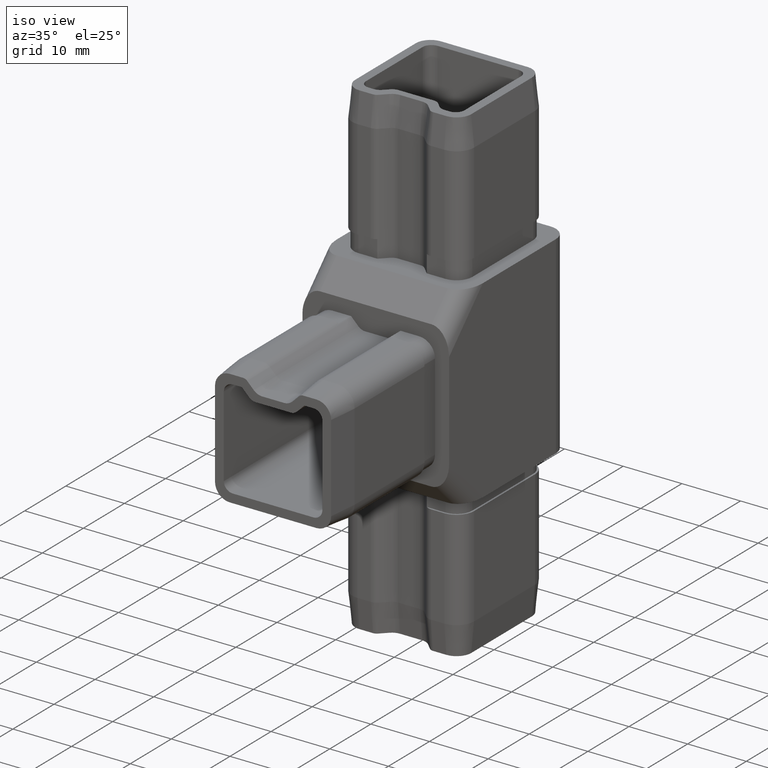
[diagram: clean part render]
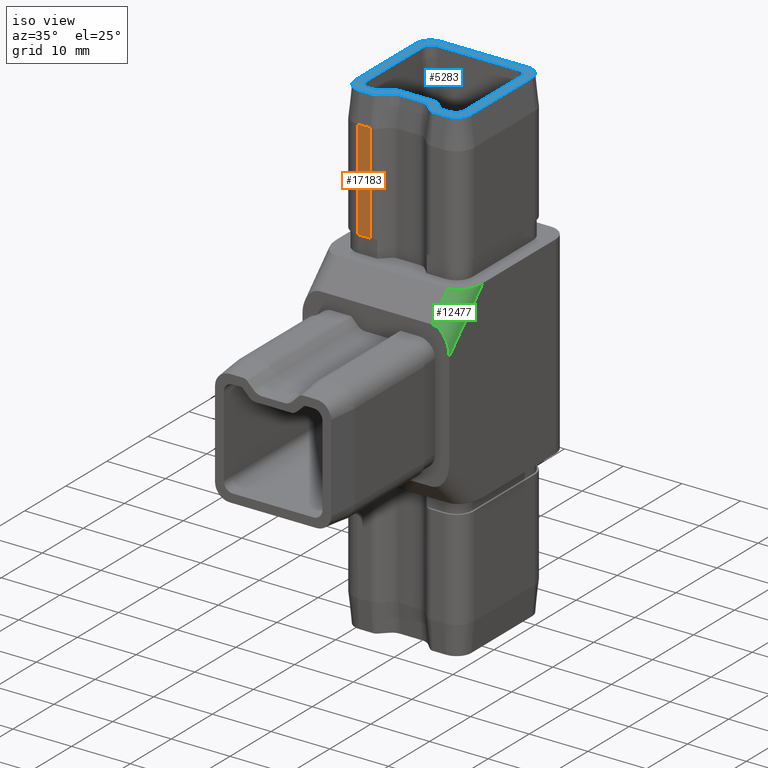
[diagram: same view with three faces highlighted in distinct colors, each labeled with its STEP entity id]
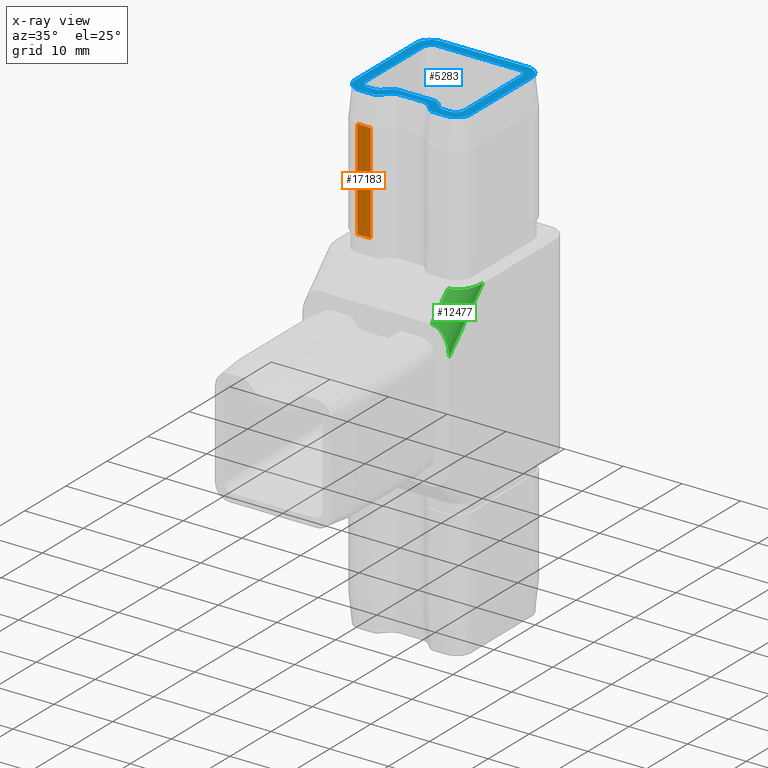
[diagram: x-ray of the same camera — body ghosted, the three highlighted faces saturated]
A machine part, iso view with three faces highlighted in distinct colors.
The next image is the same camera in x-ray (body ghosted, the three faces saturated) — at least one of them is partly hidden behind the body in this view.
Their STEP definitions:

[orange] entity #17183 — the highlighted planar face has unit normal (0, -1, 0).
#224 = VERTEX_POINT ( 'NONE', #16847 ) ;
#369 = CARTESIAN_POINT ( 'NONE',  ( -5.121320343559642800, -8.399999999999993200, 19.50000000000000000 ) ) ;
#1852 = VECTOR ( 'NONE', #2234, 1000.000000000000000 ) ;
#2084 = VERTEX_POINT ( 'NONE', #18792 ) ;
#2147 = ORIENTED_EDGE ( 'NONE', *, *, #10604, .T. ) ;
#2234 = DIRECTION ( 'NONE',  ( -1.000000000000000000, -1.172110456741085300E-016, 0.0000000000000000000 ) ) ;
#2946 = AXIS2_PLACEMENT_3D ( 'NONE', #15961, #19028, #6685 ) ;
#3716 = LINE ( 'NONE', #10082, #17240 ) ;
#5123 = LINE ( 'NONE', #15343, #1852 ) ;
#5351 = ORIENTED_EDGE ( 'NONE', *, *, #16415, .T. ) ;
#5925 = VERTEX_POINT ( 'NONE', #369 ) ;
#5930 = VECTOR ( 'NONE', #16714, 1000.000000000000000 ) ;
#6066 = EDGE_CURVE ( 'NONE', #2084, #7155, #18521, .T. ) ;
#6158 = CARTESIAN_POINT ( 'NONE',  ( -5.121320343559642800, -8.399999999999991500, 41.50000000000000000 ) ) ;
#6685 = DIRECTION ( 'NONE',  ( 0.0000000000000000000, -0.0000000000000000000, -1.000000000000000000 ) ) ;
#7084 = DIRECTION ( 'NONE',  ( -1.000000000000000000, 0.0000000000000000000, 0.0000000000000000000 ) ) ;
#7155 = VERTEX_POINT ( 'NONE', #9947 ) ;
#9046 = ORIENTED_EDGE ( 'NONE', *, *, #6066, .T. ) ;
#9801 = CARTESIAN_POINT ( 'NONE',  ( -7.400000000000003000, -8.399999999999991500, 41.50000000000000000 ) ) ;
#9947 = CARTESIAN_POINT ( 'NONE',  ( -7.400000000000005700, -8.399999999999993200, 19.50000000000000000 ) ) ;
#9953 = VECTOR ( 'NONE', #10437, 1000.000000000000000 ) ;
#10082 = CARTESIAN_POINT ( 'NONE',  ( -5.121320343559641900, -8.399999999999987900, 36.50000000000000700 ) ) ;
#10437 = DIRECTION ( 'NONE',  ( 0.0000000000000000000, 0.0000000000000000000, -1.000000000000000000 ) ) ;
#10604 = EDGE_CURVE ( 'NONE', #224, #2084, #3716, .T. ) ;
#11289 = EDGE_CURVE ( 'NONE', #5925, #7155, #5123, .T. ) ;
#12310 = ORIENTED_EDGE ( 'NONE', *, *, #11289, .F. ) ;
#14063 = FACE_OUTER_BOUND ( 'NONE', #16427, .T. ) ;
#15343 = CARTESIAN_POINT ( 'NONE',  ( 7.400000000000002100, -8.399999999999991500, 19.50000000000000000 ) ) ;
#15765 = PLANE ( 'NONE',  #2946 ) ;
#15961 = CARTESIAN_POINT ( 'NONE',  ( 0.0000000000000000000, -8.399999999999991500, 41.50000000000000000 ) ) ;
#16415 = EDGE_CURVE ( 'NONE', #5925, #224, #16805, .T. ) ;
#16427 = EDGE_LOOP ( 'NONE', ( #2147, #9046, #12310, #5351 ) ) ;
#16714 = DIRECTION ( 'NONE',  ( -0.0000000000000000000, -0.0000000000000000000, 1.000000000000000000 ) ) ;
#16805 = LINE ( 'NONE', #6158, #5930 ) ;
#16847 = CARTESIAN_POINT ( 'NONE',  ( -5.121320343559642800, -8.399999999999991500, 36.49999999999998600 ) ) ;
#17183 = ADVANCED_FACE ( 'NONE', ( #14063 ), #15765, .T. ) ;
#17240 = VECTOR ( 'NONE', #7084, 1000.000000000000000 ) ;
#18521 = LINE ( 'NONE', #9801, #9953 ) ;
#18792 = CARTESIAN_POINT ( 'NONE',  ( -7.400000000000003000, -8.399999999999987900, 36.50000000000000700 ) ) ;
#19028 = DIRECTION ( 'NONE',  ( 0.0000000000000000000, -1.000000000000000000, 0.0000000000000000000 ) ) ;

[blue] entity #5283 — the highlighted planar face has unit normal (-0, 0, 1).
#140 = CIRCLE ( 'NONE', #13457, 2.500000000000003100 ) ;
#177 = DIRECTION ( 'NONE',  ( -1.000000000000000000, 0.0000000000000000000, 0.0000000000000000000 ) ) ;
#214 = CARTESIAN_POINT ( 'NONE',  ( -8.400000000000002100, -4.899999999999991500, 41.50000000000000000 ) ) ;
#223 = LINE ( 'NONE', #12605, #15363 ) ;
#302 = AXIS2_PLACEMENT_3D ( 'NONE', #17414, #13021, #18824 ) ;
#396 = CARTESIAN_POINT ( 'NONE',  ( 3.008831175456875500, -4.701724394270312900, 41.50000000000000000 ) ) ;
#397 = CARTESIAN_POINT ( 'NONE',  ( 0.0000000000000000000, -4.701724394270312900, 41.50000000000000000 ) ) ;
#408 = EDGE_CURVE ( 'NONE', #5649, #16141, #3472, .T. ) ;
#409 = ORIENTED_EDGE ( 'NONE', *, *, #4916, .F. ) ;
#454 = VERTEX_POINT ( 'NONE', #1254 ) ;
#605 = DIRECTION ( 'NONE',  ( 1.000000000000000000, 0.0000000000000000000, 0.0000000000000000000 ) ) ;
#641 = AXIS2_PLACEMENT_3D ( 'NONE', #3541, #12711, #11203 ) ;
#651 = DIRECTION ( 'NONE',  ( -0.0000000000000000000, -0.0000000000000000000, -1.000000000000000000 ) ) ;
#706 = AXIS2_PLACEMENT_3D ( 'NONE', #10638, #16922, #177 ) ;
#711 = EDGE_CURVE ( 'NONE', #14790, #18388, #2994, .T. ) ;
#713 = DIRECTION ( 'NONE',  ( -0.0000000000000000000, 0.0000000000000000000, 1.000000000000000000 ) ) ;
#779 = CARTESIAN_POINT ( 'NONE',  ( -8.400000000000002100, 0.0000000000000000000, 41.50000000000000000 ) ) ;
#850 = VECTOR ( 'NONE', #11585, 1000.000000000000000 ) ;
#873 = CARTESIAN_POINT ( 'NONE',  ( -1.878679656440359800, -5.899999999999993200, 41.50000000000000700 ) ) ;
#956 = CARTESIAN_POINT ( 'NONE',  ( -6.900000000000002100, -6.399999999999989700, 41.50000000000000000 ) ) ;
#960 = DIRECTION ( 'NONE',  ( 1.000000000000000000, 0.0000000000000000000, 0.0000000000000000000 ) ) ;
#969 = DIRECTION ( 'NONE',  ( 0.0000000000000000000, 0.0000000000000000000, 1.000000000000000000 ) ) ;
#1018 = CARTESIAN_POINT ( 'NONE',  ( 7.399999999999999500, 9.400000000000005700, 41.50000000000000700 ) ) ;
#1124 = DIRECTION ( 'NONE',  ( -1.000000000000000000, 0.0000000000000000000, 0.0000000000000000000 ) ) ;
#1131 = AXIS2_PLACEMENT_3D ( 'NONE', #13425, #11704, #2845 ) ;
#1230 = DIRECTION ( 'NONE',  ( 2.344220913482172600E-016, -1.000000000000000000, 0.0000000000000000000 ) ) ;
#1254 = CARTESIAN_POINT ( 'NONE',  ( 8.400000000000000400, 8.900000000000007500, 41.50000000000000000 ) ) ;
#1391 = CARTESIAN_POINT ( 'NONE',  ( -6.900000000000003900, 8.900000000000007500, 41.50000000000000000 ) ) ;
#1418 = ORIENTED_EDGE ( 'NONE', *, *, #13349, .T. ) ;
#1450 = CARTESIAN_POINT ( 'NONE',  ( 4.414213562373092300, -7.607106781186539400, 41.50000000000000700 ) ) ;
#1461 = CIRCLE ( 'NONE', #4469, 1.000000000000006000 ) ;
#1681 = ORIENTED_EDGE ( 'NONE', *, *, #7458, .F. ) ;
#1689 = CARTESIAN_POINT ( 'NONE',  ( 8.400000000000000400, -4.899999999999989700, 41.50000000000000000 ) ) ;
#1690 = DIRECTION ( 'NONE',  ( 0.0000000000000000000, 1.000000000000000000, 0.0000000000000000000 ) ) ;
#1856 = DIRECTION ( 'NONE',  ( -1.000000000000000000, 0.0000000000000000000, 0.0000000000000000000 ) ) ;
#1924 = VERTEX_POINT ( 'NONE', #17849 ) ;
#2137 = VERTEX_POINT ( 'NONE', #3798 ) ;
#2146 = CARTESIAN_POINT ( 'NONE',  ( 3.008831175456875500, -6.201724394270312900, 41.50000000000000000 ) ) ;
#2185 = DIRECTION ( 'NONE',  ( -1.000000000000000000, 0.0000000000000000000, 0.0000000000000000000 ) ) ;
#2246 = EDGE_CURVE ( 'NONE', #8341, #16141, #15760, .T. ) ;
#2279 = CARTESIAN_POINT ( 'NONE',  ( -4.414213562373093100, -7.607106781186543800, 41.50000000000000700 ) ) ;
#2306 = AXIS2_PLACEMENT_3D ( 'NONE', #19317, #969, #16132 ) ;
#2354 = ORIENTED_EDGE ( 'NONE', *, *, #408, .F. ) ;
#2414 = CIRCLE ( 'NONE', #12285, 1.500000000000000400 ) ;
#2455 = CARTESIAN_POINT ( 'NONE',  ( -5.949747468305834500, -4.899999999999989700, 41.50000000000000000 ) ) ;
#2493 = ORIENTED_EDGE ( 'NONE', *, *, #4165, .T. ) ;
#2518 = DIRECTION ( 'NONE',  ( -1.000000000000000000, -7.612844881788730800E-016, 0.0000000000000000000 ) ) ;
#2565 = FACE_BOUND ( 'NONE', #9048, .T. ) ;
#2616 = VECTOR ( 'NONE', #8104, 1000.000000000000000 ) ;
#2724 = VERTEX_POINT ( 'NONE', #396 ) ;
#2818 = CARTESIAN_POINT ( 'NONE',  ( -7.400000000000006600, -7.899999999999995900, 41.50000000000000700 ) ) ;
#2830 = EDGE_CURVE ( 'NONE', #18140, #6533, #7868, .T. ) ;
#2845 = DIRECTION ( 'NONE',  ( 1.000000000000000000, 0.0000000000000000000, 0.0000000000000000000 ) ) ;
#2855 = CARTESIAN_POINT ( 'NONE',  ( -7.400000000000003000, 9.400000000000005700, 41.50000000000000700 ) ) ;
#2860 = EDGE_CURVE ( 'NONE', #4066, #12033, #17517, .T. ) ;
#2938 = ORIENTED_EDGE ( 'NONE', *, *, #18497, .F. ) ;
#2994 = LINE ( 'NONE', #779, #5585 ) ;
#3443 = DIRECTION ( 'NONE',  ( -1.000000000000000000, 0.0000000000000000000, -0.0000000000000000000 ) ) ;
#3472 = LINE ( 'NONE', #8478, #850 ) ;
#3541 = CARTESIAN_POINT ( 'NONE',  ( -6.900000000000002100, -4.899999999999991500, 41.50000000000000000 ) ) ;
#3660 = DIRECTION ( 'NONE',  ( 1.000000000000000000, 0.0000000000000000000, 0.0000000000000000000 ) ) ;
#3713 = CIRCLE ( 'NONE', #641, 1.500000000000000400 ) ;
#3786 = CARTESIAN_POINT ( 'NONE',  ( 0.0000000000000000000, 0.0000000000000000000, 41.50000000000000000 ) ) ;
#3798 = CARTESIAN_POINT ( 'NONE',  ( 4.069491347236698300, -5.141064222490492800, 41.50000000000000000 ) ) ;
#3943 = CARTESIAN_POINT ( 'NONE',  ( 7.400000000000003000, -7.899999999999994100, 41.50000000000000700 ) ) ;
#4023 = AXIS2_PLACEMENT_3D ( 'NONE', #13079, #11575, #10110 ) ;
#4066 = VERTEX_POINT ( 'NONE', #1689 ) ;
#4104 = ORIENTED_EDGE ( 'NONE', *, *, #8676, .T. ) ;
#4165 = EDGE_CURVE ( 'NONE', #13901, #5261, #12202, .T. ) ;
#4261 = DIRECTION ( 'NONE',  ( -0.7071067811865463500, -0.7071067811865487900, 0.0000000000000000000 ) ) ;
#4310 = CIRCLE ( 'NONE', #302, 1.000000000000006000 ) ;
#4415 = ORIENTED_EDGE ( 'NONE', *, *, #7711, .F. ) ;
#4431 = DIRECTION ( 'NONE',  ( -1.000000000000000000, 0.0000000000000000000, 0.0000000000000000000 ) ) ;
#4469 = AXIS2_PLACEMENT_3D ( 'NONE', #13956, #4878, #1856 ) ;
#4505 = EDGE_CURVE ( 'NONE', #15364, #18287, #14515, .T. ) ;
#4564 = VERTEX_POINT ( 'NONE', #3943 ) ;
#4754 = CARTESIAN_POINT ( 'NONE',  ( 5.949747468305835300, -6.399999999999988800, 41.50000000000000000 ) ) ;
#4878 = DIRECTION ( 'NONE',  ( -0.0000000000000000000, -0.0000000000000000000, -1.000000000000000000 ) ) ;
#4916 = EDGE_CURVE ( 'NONE', #8341, #12703, #7612, .T. ) ;
#4936 = CARTESIAN_POINT ( 'NONE',  ( -3.292893218813454800, -6.485786437626901000, 41.50000000000000700 ) ) ;
#5047 = CARTESIAN_POINT ( 'NONE',  ( 1.878679656440363400, -7.899999999999988800, 41.50000000000000700 ) ) ;
#5114 = EDGE_CURVE ( 'NONE', #12033, #15364, #223, .T. ) ;
#5157 = LINE ( 'NONE', #7203, #8725 ) ;
#5261 = VERTEX_POINT ( 'NONE', #14622 ) ;
#5283 = ADVANCED_FACE ( 'NONE', ( #18700, #2565 ), #16094, .T. ) ;
#5340 = DIRECTION ( 'NONE',  ( 0.0000000000000000000, 1.000000000000000000, -0.0000000000000000000 ) ) ;
#5403 = CARTESIAN_POINT ( 'NONE',  ( 1.807254897921661800E-015, -6.399999999999987900, 41.50000000000000000 ) ) ;
#5469 = LINE ( 'NONE', #12243, #11623 ) ;
#5480 = CARTESIAN_POINT ( 'NONE',  ( 6.900000000000000400, -6.399999999999988800, 41.50000000000000000 ) ) ;
#5585 = VECTOR ( 'NONE', #5340, 1000.000000000000000 ) ;
#5649 = VERTEX_POINT ( 'NONE', #17845 ) ;
#5661 = ORIENTED_EDGE ( 'NONE', *, *, #5919, .T. ) ;
#5674 = DIRECTION ( 'NONE',  ( 0.0000000000000000000, -0.0000000000000000000, -1.000000000000000000 ) ) ;
#5761 = LINE ( 'NONE', #7259, #9337 ) ;
#5919 = EDGE_CURVE ( 'NONE', #8731, #14790, #3713, .T. ) ;
#5975 = DIRECTION ( 'NONE',  ( 1.032573497605242800E-016, -1.000000000000000000, 0.0000000000000000000 ) ) ;
#6031 = DIRECTION ( 'NONE',  ( -0.7071067811865459100, 0.7071067811865491300, 0.0000000000000000000 ) ) ;
#6068 = VECTOR ( 'NONE', #14346, 1000.000000000000000 ) ;
#6128 = EDGE_CURVE ( 'NONE', #15601, #9974, #12325, .T. ) ;
#6227 = CIRCLE ( 'NONE', #1131, 1.500000000000000400 ) ;
#6296 = VERTEX_POINT ( 'NONE', #18278 ) ;
#6416 = VECTOR ( 'NONE', #6031, 1000.000000000000100 ) ;
#6533 = VERTEX_POINT ( 'NONE', #13458 ) ;
#6560 = CARTESIAN_POINT ( 'NONE',  ( -5.121320343559645500, -7.899999999999995900, 41.50000000000000700 ) ) ;
#6565 = CARTESIAN_POINT ( 'NONE',  ( -6.900000000000003900, 10.40000000000000400, 41.50000000000000000 ) ) ;
#6623 = EDGE_CURVE ( 'NONE', #14832, #5649, #140, .T. ) ;
#6719 = CARTESIAN_POINT ( 'NONE',  ( 7.400000000000002100, -5.399999999999987900, 41.50000000000000700 ) ) ;
#6786 = CARTESIAN_POINT ( 'NONE',  ( 0.5357864376268916000, -0.5357864376268899300, 41.50000000000000000 ) ) ;
#6799 = DIRECTION ( 'NONE',  ( -1.000000000000000000, -2.823835778002602900E-016, 0.0000000000000000000 ) ) ;
#7079 = VECTOR ( 'NONE', #1230, 1000.000000000000000 ) ;
#7153 = CARTESIAN_POINT ( 'NONE',  ( 4.889087296526012600, -5.960660171779808900, 41.50000000000000000 ) ) ;
#7203 = CARTESIAN_POINT ( 'NONE',  ( 1.878679656440362500, -5.899999999999993200, 41.50000000000000700 ) ) ;
#7259 = CARTESIAN_POINT ( 'NONE',  ( 7.400000000000003000, -7.899999999999994100, 41.50000000000000700 ) ) ;
#7286 = CARTESIAN_POINT ( 'NONE',  ( 4.414213562373092300, -7.607106781186539400, 41.50000000000000700 ) ) ;
#7368 = DIRECTION ( 'NONE',  ( -0.0000000000000000000, -0.0000000000000000000, -1.000000000000000000 ) ) ;
#7458 = EDGE_CURVE ( 'NONE', #16643, #14345, #8342, .T. ) ;
#7612 = CIRCLE ( 'NONE', #9295, 2.500000000000005800 ) ;
#7674 = ORIENTED_EDGE ( 'NONE', *, *, #12699, .F. ) ;
#7711 = EDGE_CURVE ( 'NONE', #18227, #19385, #1461, .T. ) ;
#7794 = ORIENTED_EDGE ( 'NONE', *, *, #12624, .T. ) ;
#7868 = CIRCLE ( 'NONE', #8246, 1.500000000000000000 ) ;
#8041 = CIRCLE ( 'NONE', #706, 2.500000000000004900 ) ;
#8104 = DIRECTION ( 'NONE',  ( -1.000000000000000000, 0.0000000000000000000, 0.0000000000000000000 ) ) ;
#8246 = AXIS2_PLACEMENT_3D ( 'NONE', #9782, #713, #11295 ) ;
#8341 = VERTEX_POINT ( 'NONE', #8737 ) ;
#8342 = CIRCLE ( 'NONE', #2306, 1.999999999999995800 ) ;
#8373 = DIRECTION ( 'NONE',  ( -0.0000000000000000000, 0.0000000000000000000, 1.000000000000000000 ) ) ;
#8436 = VECTOR ( 'NONE', #3443, 1000.000000000000000 ) ;
#8440 = ORIENTED_EDGE ( 'NONE', *, *, #10732, .F. ) ;
#8478 = CARTESIAN_POINT ( 'NONE',  ( -7.400000000000000400, 11.90000000000000700, 41.50000000000000700 ) ) ;
#8550 = ORIENTED_EDGE ( 'NONE', *, *, #5114, .T. ) ;
#8614 = DIRECTION ( 'NONE',  ( -0.7071067811865464600, -0.7071067811865486800, 0.0000000000000000000 ) ) ;
#8643 = VERTEX_POINT ( 'NONE', #9471 ) ;
#8676 = EDGE_CURVE ( 'NONE', #18287, #2137, #9504, .T. ) ;
#8681 = EDGE_CURVE ( 'NONE', #6296, #8731, #16580, .T. ) ;
#8725 = VECTOR ( 'NONE', #1124, 1000.000000000000000 ) ;
#8731 = VERTEX_POINT ( 'NONE', #956 ) ;
#8737 = CARTESIAN_POINT ( 'NONE',  ( 7.399999999999997700, 11.90000000000001100, 41.50000000000000700 ) ) ;
#8830 = VERTEX_POINT ( 'NONE', #2818 ) ;
#9048 = EDGE_LOOP ( 'NONE', ( #8550, #18636, #4104, #7794, #13988, #10006, #18691, #1418, #15598, #5661, #14534, #16910, #2493, #10870, #13386, #12289 ) ) ;
#9243 = VERTEX_POINT ( 'NONE', #13611 ) ;
#9295 = AXIS2_PLACEMENT_3D ( 'NONE', #1018, #7368, #19447 ) ;
#9337 = VECTOR ( 'NONE', #2518, 1000.000000000000000 ) ;
#9407 = CIRCLE ( 'NONE', #16301, 1.500000000000000400 ) ;
#9471 = CARTESIAN_POINT ( 'NONE',  ( 9.900000000000007500, -5.399999999999987900, 41.50000000000000700 ) ) ;
#9482 = ORIENTED_EDGE ( 'NONE', *, *, #10574, .F. ) ;
#9504 = LINE ( 'NONE', #10985, #15627 ) ;
#9651 = DIRECTION ( 'NONE',  ( -0.7071067811865465700, 0.7071067811865484600, 0.0000000000000000000 ) ) ;
#9666 = ORIENTED_EDGE ( 'NONE', *, *, #14604, .F. ) ;
#9679 = CARTESIAN_POINT ( 'NONE',  ( 0.0000000000000000000, 10.40000000000000400, 41.50000000000000000 ) ) ;
#9782 = CARTESIAN_POINT ( 'NONE',  ( -3.008831175456876000, -6.201724394270312900, 41.50000000000000000 ) ) ;
#9808 = EDGE_CURVE ( 'NONE', #6533, #16369, #13958, .T. ) ;
#9854 = LINE ( 'NONE', #397, #8436 ) ;
#9974 = VERTEX_POINT ( 'NONE', #17055 ) ;
#9976 = CARTESIAN_POINT ( 'NONE',  ( 6.900000000000000400, -4.899999999999989700, 41.50000000000000000 ) ) ;
#10006 = ORIENTED_EDGE ( 'NONE', *, *, #2830, .T. ) ;
#10110 = DIRECTION ( 'NONE',  ( 1.000000000000000000, -1.156482317317871700E-015, 0.0000000000000000000 ) ) ;
#10191 = EDGE_CURVE ( 'NONE', #1924, #16643, #5157, .T. ) ;
#10292 = CARTESIAN_POINT ( 'NONE',  ( 9.900000000000003900, 9.400000000000005700, 41.50000000000000700 ) ) ;
#10393 = AXIS2_PLACEMENT_3D ( 'NONE', #6719, #651, #2185 ) ;
#10452 = DIRECTION ( 'NONE',  ( 1.000000000000000000, 0.0000000000000000000, 0.0000000000000000000 ) ) ;
#10574 = EDGE_CURVE ( 'NONE', #8643, #4564, #15572, .T. ) ;
#10638 = CARTESIAN_POINT ( 'NONE',  ( -7.400000000000003000, -5.399999999999990600, 41.50000000000000700 ) ) ;
#10732 = EDGE_CURVE ( 'NONE', #14345, #18227, #17018, .T. ) ;
#10735 = EDGE_CURVE ( 'NONE', #12703, #8643, #13188, .T. ) ;
#10848 = EDGE_CURVE ( 'NONE', #8830, #9243, #8041, .T. ) ;
#10870 = ORIENTED_EDGE ( 'NONE', *, *, #18876, .T. ) ;
#10985 = CARTESIAN_POINT ( 'NONE',  ( -0.5357864376268920400, -0.5357864376268906000, 41.50000000000000000 ) ) ;
#11041 = AXIS2_PLACEMENT_3D ( 'NONE', #3786, #19078, #11523 ) ;
#11203 = DIRECTION ( 'NONE',  ( 1.000000000000000000, 0.0000000000000000000, 0.0000000000000000000 ) ) ;
#11295 = DIRECTION ( 'NONE',  ( 1.000000000000000000, 0.0000000000000000000, 0.0000000000000000000 ) ) ;
#11301 = CARTESIAN_POINT ( 'NONE',  ( 0.0000000000000000000, 11.90000000000001100, 41.50000000000000000 ) ) ;
#11307 = CARTESIAN_POINT ( 'NONE',  ( -9.900000000000005700, 9.400000000000009200, 41.50000000000000700 ) ) ;
#11419 = ORIENTED_EDGE ( 'NONE', *, *, #19254, .F. ) ;
#11523 = DIRECTION ( 'NONE',  ( 1.000000000000000000, 0.0000000000000000000, 0.0000000000000000000 ) ) ;
#11575 = DIRECTION ( 'NONE',  ( 0.0000000000000000000, -0.0000000000000000000, -1.000000000000000000 ) ) ;
#11584 = EDGE_CURVE ( 'NONE', #18388, #13901, #9407, .T. ) ;
#11585 = DIRECTION ( 'NONE',  ( 1.000000000000000000, 0.0000000000000000000, 0.0000000000000000000 ) ) ;
#11623 = VECTOR ( 'NONE', #5975, 1000.000000000000000 ) ;
#11704 = DIRECTION ( 'NONE',  ( 0.0000000000000000000, -0.0000000000000000000, -1.000000000000000000 ) ) ;
#11851 = EDGE_CURVE ( 'NONE', #2724, #18140, #9854, .T. ) ;
#11894 = CARTESIAN_POINT ( 'NONE',  ( -3.292893218813454800, -6.485786437626901000, 41.50000000000000700 ) ) ;
#12033 = VERTEX_POINT ( 'NONE', #5480 ) ;
#12058 = DIRECTION ( 'NONE',  ( -0.0000000000000000000, -0.0000000000000000000, -1.000000000000000000 ) ) ;
#12142 = CARTESIAN_POINT ( 'NONE',  ( -8.400000000000002100, 8.900000000000007500, 41.50000000000000000 ) ) ;
#12202 = LINE ( 'NONE', #9679, #6068 ) ;
#12243 = CARTESIAN_POINT ( 'NONE',  ( 8.400000000000000400, 8.673617379884041400E-016, 41.50000000000000000 ) ) ;
#12285 = AXIS2_PLACEMENT_3D ( 'NONE', #2455, #14547, #16086 ) ;
#12289 = ORIENTED_EDGE ( 'NONE', *, *, #2860, .T. ) ;
#12291 = AXIS2_PLACEMENT_3D ( 'NONE', #9976, #5674, #960 ) ;
#12309 = VECTOR ( 'NONE', #8614, 999.9999999999998900 ) ;
#12325 = LINE ( 'NONE', #1450, #6416 ) ;
#12467 = CARTESIAN_POINT ( 'NONE',  ( -9.900000000000005700, -5.399999999999987900, 41.50000000000000700 ) ) ;
#12573 = LINE ( 'NONE', #6560, #2616 ) ;
#12605 = CARTESIAN_POINT ( 'NONE',  ( 1.807254897921663000E-015, -6.399999999999990600, 41.50000000000000000 ) ) ;
#12624 = EDGE_CURVE ( 'NONE', #2137, #2724, #13819, .T. ) ;
#12699 = EDGE_CURVE ( 'NONE', #4564, #13828, #5761, .T. ) ;
#12703 = VERTEX_POINT ( 'NONE', #19213 ) ;
#12711 = DIRECTION ( 'NONE',  ( 0.0000000000000000000, -0.0000000000000000000, -1.000000000000000000 ) ) ;
#12738 = EDGE_LOOP ( 'NONE', ( #2354, #19326, #2938, #15388, #11419, #4415, #8440, #1681, #14761, #9666, #16490, #17722, #7674, #9482, #18868, #409, #15049 ) ) ;
#12762 = AXIS2_PLACEMENT_3D ( 'NONE', #2146, #8373, #605 ) ;
#12957 = VECTOR ( 'NONE', #4261, 1000.000000000000000 ) ;
#13021 = DIRECTION ( 'NONE',  ( -0.0000000000000000000, -0.0000000000000000000, -1.000000000000000000 ) ) ;
#13079 = CARTESIAN_POINT ( 'NONE',  ( 5.949747468305835300, -4.899999999999989700, 41.50000000000000000 ) ) ;
#13181 = DIRECTION ( 'NONE',  ( -1.000000000000000000, -0.0000000000000000000, -0.0000000000000000000 ) ) ;
#13188 = LINE ( 'NONE', #10292, #7079 ) ;
#13333 = CARTESIAN_POINT ( 'NONE',  ( -3.008831175456876000, -4.701724394270312900, 41.50000000000000000 ) ) ;
#13349 = EDGE_CURVE ( 'NONE', #16369, #6296, #2414, .T. ) ;
#13386 = ORIENTED_EDGE ( 'NONE', *, *, #19044, .T. ) ;
#13425 = CARTESIAN_POINT ( 'NONE',  ( 6.899999999999998600, 8.900000000000007500, 41.50000000000000000 ) ) ;
#13457 = AXIS2_PLACEMENT_3D ( 'NONE', #2855, #12058, #4431 ) ;
#13458 = CARTESIAN_POINT ( 'NONE',  ( -4.069491347236698300, -5.141064222490493700, 41.50000000000000000 ) ) ;
#13611 = CARTESIAN_POINT ( 'NONE',  ( -9.900000000000005700, -5.399999999999987900, 41.50000000000000700 ) ) ;
#13676 = CARTESIAN_POINT ( 'NONE',  ( -4.889087296526012600, -5.960660171779808900, 41.50000000000000000 ) ) ;
#13819 = CIRCLE ( 'NONE', #12762, 1.500000000000000400 ) ;
#13828 = VERTEX_POINT ( 'NONE', #16821 ) ;
#13901 = VERTEX_POINT ( 'NONE', #6565 ) ;
#13956 = CARTESIAN_POINT ( 'NONE',  ( -5.121320343559642800, -6.899999999999990600, 41.50000000000000700 ) ) ;
#13958 = LINE ( 'NONE', #6786, #12309 ) ;
#13988 = ORIENTED_EDGE ( 'NONE', *, *, #11851, .T. ) ;
#14240 = VECTOR ( 'NONE', #1690, 1000.000000000000000 ) ;
#14345 = VERTEX_POINT ( 'NONE', #4936 ) ;
#14346 = DIRECTION ( 'NONE',  ( 1.000000000000000000, 0.0000000000000000000, 0.0000000000000000000 ) ) ;
#14515 = CIRCLE ( 'NONE', #4023, 1.499999999999999600 ) ;
#14534 = ORIENTED_EDGE ( 'NONE', *, *, #711, .T. ) ;
#14547 = DIRECTION ( 'NONE',  ( 0.0000000000000000000, -0.0000000000000000000, -1.000000000000000000 ) ) ;
#14604 = EDGE_CURVE ( 'NONE', #9974, #1924, #17542, .T. ) ;
#14622 = CARTESIAN_POINT ( 'NONE',  ( 6.899999999999998600, 10.40000000000000400, 41.50000000000000000 ) ) ;
#14761 = ORIENTED_EDGE ( 'NONE', *, *, #10191, .F. ) ;
#14790 = VERTEX_POINT ( 'NONE', #214 ) ;
#14832 = VERTEX_POINT ( 'NONE', #11307 ) ;
#15049 = ORIENTED_EDGE ( 'NONE', *, *, #2246, .T. ) ;
#15238 = CARTESIAN_POINT ( 'NONE',  ( -5.121320343559645500, -7.899999999999995900, 41.50000000000000700 ) ) ;
#15363 = VECTOR ( 'NONE', #6799, 1000.000000000000000 ) ;
#15364 = VERTEX_POINT ( 'NONE', #4754 ) ;
#15388 = ORIENTED_EDGE ( 'NONE', *, *, #10848, .F. ) ;
#15572 = CIRCLE ( 'NONE', #10393, 2.500000000000005800 ) ;
#15598 = ORIENTED_EDGE ( 'NONE', *, *, #8681, .T. ) ;
#15601 = VERTEX_POINT ( 'NONE', #7286 ) ;
#15627 = VECTOR ( 'NONE', #9651, 1000.000000000000000 ) ;
#15631 = DIRECTION ( 'NONE',  ( 0.0000000000000000000, 0.0000000000000000000, 1.000000000000000000 ) ) ;
#15760 = LINE ( 'NONE', #17972, #17206 ) ;
#16052 = DIRECTION ( 'NONE',  ( -1.000000000000000000, -2.823835778002601000E-016, 0.0000000000000000000 ) ) ;
#16086 = DIRECTION ( 'NONE',  ( 1.000000000000000000, 1.156482317317871100E-015, 0.0000000000000000000 ) ) ;
#16094 = PLANE ( 'NONE',  #11041 ) ;
#16132 = DIRECTION ( 'NONE',  ( 1.000000000000000000, 0.0000000000000000000, 0.0000000000000000000 ) ) ;
#16141 = VERTEX_POINT ( 'NONE', #11301 ) ;
#16301 = AXIS2_PLACEMENT_3D ( 'NONE', #1391, #19329, #10452 ) ;
#16335 = VECTOR ( 'NONE', #16052, 1000.000000000000000 ) ;
#16369 = VERTEX_POINT ( 'NONE', #13676 ) ;
#16490 = ORIENTED_EDGE ( 'NONE', *, *, #6128, .F. ) ;
#16580 = LINE ( 'NONE', #5403, #16335 ) ;
#16593 = AXIS2_PLACEMENT_3D ( 'NONE', #5047, #15631, #3660 ) ;
#16643 = VERTEX_POINT ( 'NONE', #873 ) ;
#16821 = CARTESIAN_POINT ( 'NONE',  ( 5.121320343559646400, -7.899999999999995900, 41.50000000000000700 ) ) ;
#16910 = ORIENTED_EDGE ( 'NONE', *, *, #11584, .T. ) ;
#16922 = DIRECTION ( 'NONE',  ( -0.0000000000000000000, -0.0000000000000000000, -1.000000000000000000 ) ) ;
#17018 = LINE ( 'NONE', #11894, #12957 ) ;
#17055 = CARTESIAN_POINT ( 'NONE',  ( 3.292893218813456100, -6.485786437626897400, 41.50000000000000700 ) ) ;
#17206 = VECTOR ( 'NONE', #13181, 1000.000000000000000 ) ;
#17414 = CARTESIAN_POINT ( 'NONE',  ( 5.121320343559646400, -6.899999999999989700, 41.50000000000000700 ) ) ;
#17517 = CIRCLE ( 'NONE', #12291, 1.500000000000000400 ) ;
#17542 = CIRCLE ( 'NONE', #16593, 1.999999999999995800 ) ;
#17597 = EDGE_CURVE ( 'NONE', #13828, #15601, #4310, .T. ) ;
#17722 = ORIENTED_EDGE ( 'NONE', *, *, #17597, .F. ) ;
#17845 = CARTESIAN_POINT ( 'NONE',  ( -7.400000000000000400, 11.90000000000000700, 41.50000000000000700 ) ) ;
#17849 = CARTESIAN_POINT ( 'NONE',  ( 1.878679656440362500, -5.899999999999993200, 41.50000000000000700 ) ) ;
#17972 = CARTESIAN_POINT ( 'NONE',  ( 7.399999999999997700, 11.90000000000001100, 41.50000000000000700 ) ) ;
#18140 = VERTEX_POINT ( 'NONE', #13333 ) ;
#18227 = VERTEX_POINT ( 'NONE', #2279 ) ;
#18278 = CARTESIAN_POINT ( 'NONE',  ( -5.949747468305834500, -6.399999999999989700, 41.50000000000000000 ) ) ;
#18287 = VERTEX_POINT ( 'NONE', #7153 ) ;
#18388 = VERTEX_POINT ( 'NONE', #12142 ) ;
#18497 = EDGE_CURVE ( 'NONE', #9243, #14832, #18773, .T. ) ;
#18636 = ORIENTED_EDGE ( 'NONE', *, *, #4505, .T. ) ;
#18691 = ORIENTED_EDGE ( 'NONE', *, *, #9808, .T. ) ;
#18700 = FACE_OUTER_BOUND ( 'NONE', #12738, .T. ) ;
#18773 = LINE ( 'NONE', #12467, #14240 ) ;
#18824 = DIRECTION ( 'NONE',  ( -1.000000000000000000, 0.0000000000000000000, 0.0000000000000000000 ) ) ;
#18868 = ORIENTED_EDGE ( 'NONE', *, *, #10735, .F. ) ;
#18876 = EDGE_CURVE ( 'NONE', #5261, #454, #6227, .T. ) ;
#19044 = EDGE_CURVE ( 'NONE', #454, #4066, #5469, .T. ) ;
#19078 = DIRECTION ( 'NONE',  ( -0.0000000000000000000, 0.0000000000000000000, 1.000000000000000000 ) ) ;
#19213 = CARTESIAN_POINT ( 'NONE',  ( 9.900000000000003900, 9.400000000000005700, 41.50000000000000700 ) ) ;
#19254 = EDGE_CURVE ( 'NONE', #19385, #8830, #12573, .T. ) ;
#19317 = CARTESIAN_POINT ( 'NONE',  ( -1.878679656440359200, -7.899999999999988800, 41.50000000000000700 ) ) ;
#19326 = ORIENTED_EDGE ( 'NONE', *, *, #6623, .F. ) ;
#19329 = DIRECTION ( 'NONE',  ( 0.0000000000000000000, -0.0000000000000000000, -1.000000000000000000 ) ) ;
#19385 = VERTEX_POINT ( 'NONE', #15238 ) ;
#19447 = DIRECTION ( 'NONE',  ( -1.000000000000000000, 0.0000000000000000000, 0.0000000000000000000 ) ) ;

[green] entity #12477 — the highlighted cylindrical surface (edge-blend (fillet) strip) has radius 3 mm, axis along (-0, 0.7071, 0.7071).
#1670 = CARTESIAN_POINT ( 'NONE',  ( 9.500000000000000000, 4.121320343559607300, 26.87867965644036200 ) ) ;
#1997 = VERTEX_POINT ( 'NONE', #11096 ) ;
#2242 = AXIS2_PLACEMENT_3D ( 'NONE', #1670, #12252, #8935 ) ;
#2758 = CARTESIAN_POINT ( 'NONE',  ( 11.25735931288072300, -10.49999999999999800, 16.50000000000000400 ) ) ;
#2825 = CARTESIAN_POINT ( 'NONE',  ( 12.49999999999999800, -6.257359312880708100, 16.50000000000000000 ) ) ;
#2957 = CARTESIAN_POINT ( 'NONE',  ( 9.500000000000001800, -10.49999999999999100, 16.50000000000000000 ) ) ;
#3956 = VERTEX_POINT ( 'NONE', #17838 ) ;
#4366 = ORIENTED_EDGE ( 'NONE', *, *, #8299, .F. ) ;
#5681 = CARTESIAN_POINT ( 'NONE',  ( 12.50000000000000000, -14.49999999999999500, 8.257359312880693000 ) ) ;
#5801 =( BOUNDED_CURVE ( )  B_SPLINE_CURVE ( 3, ( #5681, #7233, #11432, #8459 ),
 .UNSPECIFIED., .F., .F. ) 
 B_SPLINE_CURVE_WITH_KNOTS ( ( 4, 4 ),
 ( 4.712388980384688800, 6.283185307179586200 ),
 .UNSPECIFIED. ) 
 CURVE ( )  GEOMETRIC_REPRESENTATION_ITEM ( )  RATIONAL_B_SPLINE_CURVE ( ( 1.000000000000000000, 0.8047378541243648300, 0.8047378541243648300, 1.000000000000000000 ) ) 
 REPRESENTATION_ITEM ( '' )  );
#6018 = ORIENTED_EDGE ( 'NONE', *, *, #16264, .F. ) ;
#6200 = CARTESIAN_POINT ( 'NONE',  ( 9.500000000000001800, -10.49999999999999100, 16.50000000000000000 ) ) ;
#6910 = LINE ( 'NONE', #7186, #7882 ) ;
#7186 = CARTESIAN_POINT ( 'NONE',  ( 12.50000000000000000, -12.37867965644035100, 10.37867965644034600 ) ) ;
#7233 = CARTESIAN_POINT ( 'NONE',  ( 12.50000000000000200, -14.49999999999999500, 10.74264068711926800 ) ) ;
#7671 = DIRECTION ( 'NONE',  ( -8.459549885149637800E-017, 0.7071067811865463500, 0.7071067811865487900 ) ) ;
#7882 = VECTOR ( 'NONE', #10114, 1000.000000000000000 ) ;
#8299 = EDGE_CURVE ( 'NONE', #18010, #3956, #6910, .T. ) ;
#8459 = CARTESIAN_POINT ( 'NONE',  ( 9.500000000000001800, -14.49999999999999500, 12.49999999999998400 ) ) ;
#8593 = VERTEX_POINT ( 'NONE', #18554 ) ;
#8935 = DIRECTION ( 'NONE',  ( 0.0000000000000000000, -0.7071067811865489100, 0.7071067811865462400 ) ) ;
#9401 = ORIENTED_EDGE ( 'NONE', *, *, #16305, .F. ) ;
#10114 = DIRECTION ( 'NONE',  ( 8.459549885149636600E-017, -0.7071067811865463500, -0.7071067811865487900 ) ) ;
#10422 = EDGE_CURVE ( 'NONE', #1997, #8593, #15346, .T. ) ;
#10626 = VECTOR ( 'NONE', #7671, 1000.000000000000000 ) ;
#11096 = CARTESIAN_POINT ( 'NONE',  ( 9.500000000000001800, -14.49999999999999500, 12.49999999999998400 ) ) ;
#11432 = CARTESIAN_POINT ( 'NONE',  ( 11.25735931288071800, -14.49999999999999500, 12.49999999999998900 ) ) ;
#11478 = ORIENTED_EDGE ( 'NONE', *, *, #10422, .F. ) ;
#12252 = DIRECTION ( 'NONE',  ( -8.459549885149636600E-017, 0.7071067811865463500, 0.7071067811865487900 ) ) ;
#12477 = ADVANCED_FACE ( 'NONE', ( #12846 ), #18571, .T. ) ;
#12587 =( BOUNDED_CURVE ( )  B_SPLINE_CURVE ( 3, ( #2957, #2758, #13547, #2825 ),
 .UNSPECIFIED., .F., .F. ) 
 B_SPLINE_CURVE_WITH_KNOTS ( ( 4, 4 ),
 ( 3.141592653589793100, 4.712388980384691500 ),
 .UNSPECIFIED. ) 
 CURVE ( )  GEOMETRIC_REPRESENTATION_ITEM ( )  RATIONAL_B_SPLINE_CURVE ( ( 1.000000000000000000, 0.8047378541243646000, 0.8047378541243646000, 1.000000000000000000 ) ) 
 REPRESENTATION_ITEM ( '' )  );
#12846 = FACE_OUTER_BOUND ( 'NONE', #13448, .T. ) ;
#13448 = EDGE_LOOP ( 'NONE', ( #9401, #11478, #6018, #4366 ) ) ;
#13547 = CARTESIAN_POINT ( 'NONE',  ( 12.50000000000000500, -8.742640687119280300, 16.50000000000000400 ) ) ;
#15346 = LINE ( 'NONE', #6200, #10626 ) ;
#15539 = CARTESIAN_POINT ( 'NONE',  ( 12.49999999999999800, -6.257359312880708100, 16.50000000000000000 ) ) ;
#16264 = EDGE_CURVE ( 'NONE', #3956, #1997, #5801, .T. ) ;
#16305 = EDGE_CURVE ( 'NONE', #8593, #18010, #12587, .T. ) ;
#17838 = CARTESIAN_POINT ( 'NONE',  ( 12.50000000000000000, -14.49999999999999500, 8.257359312880693000 ) ) ;
#18010 = VERTEX_POINT ( 'NONE', #15539 ) ;
#18554 = CARTESIAN_POINT ( 'NONE',  ( 9.500000000000001800, -10.49999999999999100, 16.50000000000000000 ) ) ;
#18571 = CYLINDRICAL_SURFACE ( 'NONE', #2242, 2.999999999999999600 ) ;